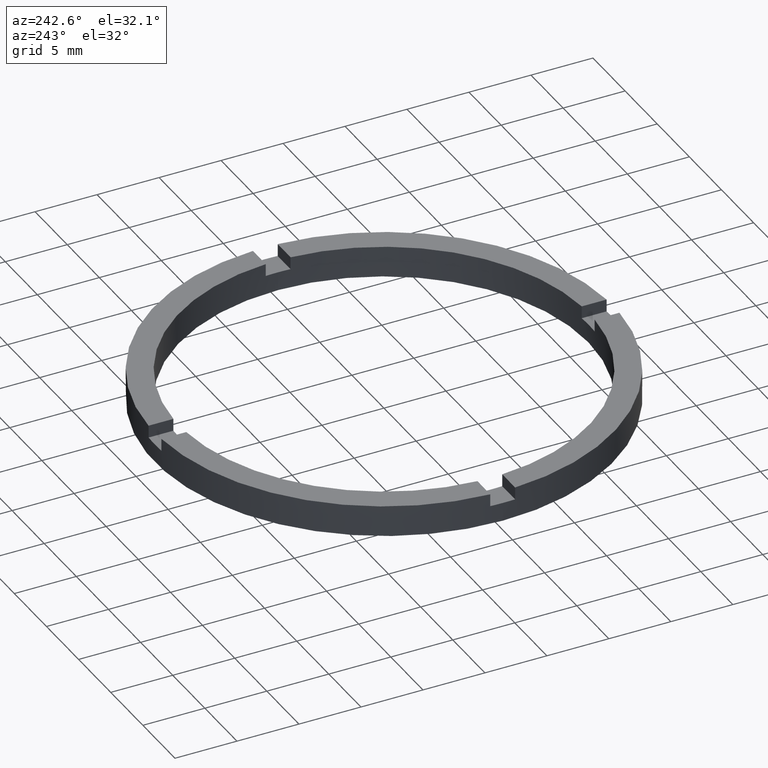
[diagram: clean part render]
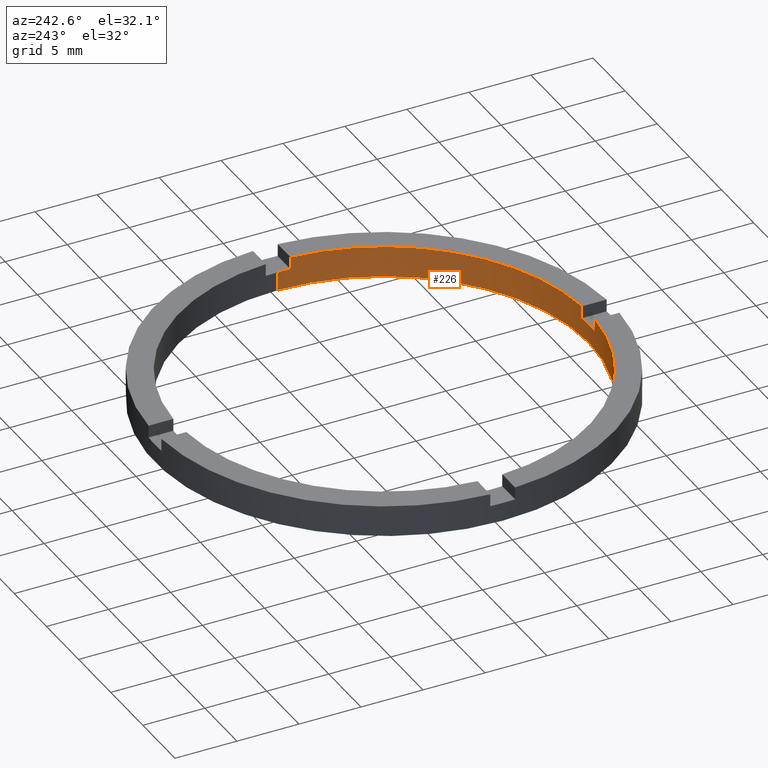
[diagram: same view with one face highlighted and labeled with its STEP entity id]
A machine part, auxiliary view. The second image highlights one B-rep face of the part: STEP entity #226.
In plain terms, the highlighted cylindrical surface (partial cylindrical patch) has radius 16.5 mm, axis along (-0, -0, -1).
Its self-contained STEP definition (entity closure, byte-faithful):
#16 = AXIS2_PLACEMENT_3D ( 'NONE', #498, #324, #439 ) ;
#30 = DIRECTION ( 'NONE',  ( -0.000000000000000000, -0.000000000000000000, -1.000000000000000000 ) ) ;
#37 = DIRECTION ( 'NONE',  ( -0.000000000000000000, 0.000000000000000000, 1.000000000000000000 ) ) ;
#46 = CARTESIAN_POINT ( 'NONE',  ( 0.000000000000000000, 0.000000000000000000, 1.500000000000000000 ) ) ;
#52 = CARTESIAN_POINT ( 'NONE',  ( 0.000000000000000000, 0.000000000000000000, 2.500000000000000000 ) ) ;
#55 = ORIENTED_EDGE ( 'NONE', *, *, #251, .F. ) ;
#63 = ORIENTED_EDGE ( 'NONE', *, *, #540, .T. ) ;
#91 = VERTEX_POINT ( 'NONE', #503 ) ;
#93 = AXIS2_PLACEMENT_3D ( 'NONE', #718, #556, #778 ) ;
#96 = DIRECTION ( 'NONE',  ( 0.000000000000000000, 0.000000000000000000, 1.000000000000000000 ) ) ;
#103 = DIRECTION ( 'NONE',  ( 1.000000000000000000, 0.000000000000000000, 0.000000000000000000 ) ) ;
#126 = VECTOR ( 'NONE', #30, 1000.000000000000000 ) ;
#127 = LINE ( 'NONE', #550, #126 ) ;
#133 = VERTEX_POINT ( 'NONE', #281 ) ;
#134 = EDGE_CURVE ( 'NONE', #183, #509, #198, .T. ) ;
#139 = LINE ( 'NONE', #145, #408 ) ;
#145 = CARTESIAN_POINT ( 'NONE',  ( -1.000000000000161204, -16.46966909200059348, 2.500000000000000000 ) ) ;
#154 = CIRCLE ( 'NONE', #93, 16.50000000000000000 ) ;
#158 = CIRCLE ( 'NONE', #191, 16.50000000000000000 ) ;
#162 = ORIENTED_EDGE ( 'NONE', *, *, #589, .T. ) ;
#179 = ORIENTED_EDGE ( 'NONE', *, *, #725, .T. ) ;
#183 = VERTEX_POINT ( 'NONE', #188 ) ;
#188 = CARTESIAN_POINT ( 'NONE',  ( -1.000000000000161204, -16.46966909200059348, 1.500000000000000000 ) ) ;
#191 = AXIS2_PLACEMENT_3D ( 'NONE', #337, #542, #328 ) ;
#192 = DIRECTION ( 'NONE',  ( 0.000000000000000000, 0.000000000000000000, 1.000000000000000000 ) ) ;
#198 = CIRCLE ( 'NONE', #577, 16.50000000000000000 ) ;
#203 = FACE_OUTER_BOUND ( 'NONE', #346, .T. ) ;
#207 = CIRCLE ( 'NONE', #630, 16.50000000000000000 ) ;
#209 = CARTESIAN_POINT ( 'NONE',  ( 16.46966909200059703, -1.000000000000157208, 1.500000000000000000 ) ) ;
#210 = EDGE_CURVE ( 'NONE', #91, #689, #207, .T. ) ;
#212 = EDGE_CURVE ( 'NONE', #603, #644, #734, .T. ) ;
#225 = DIRECTION ( 'NONE',  ( 0.000000000000000000, 0.000000000000000000, 1.000000000000000000 ) ) ;
#226 = ADVANCED_FACE ( 'NONE', ( #203 ), #377, .F. ) ;
#238 = CARTESIAN_POINT ( 'NONE',  ( 0.000000000000000000, 0.000000000000000000, 1.500000000000000000 ) ) ;
#239 = CARTESIAN_POINT ( 'NONE',  ( 0.000000000000000000, 0.000000000000000000, 1.500000000000000000 ) ) ;
#242 = DIRECTION ( 'NONE',  ( 1.000000000000000000, 0.000000000000000000, 0.000000000000000000 ) ) ;
#246 = AXIS2_PLACEMENT_3D ( 'NONE', #239, #312, #407 ) ;
#251 = EDGE_CURVE ( 'NONE', #133, #509, #657, .T. ) ;
#260 = CARTESIAN_POINT ( 'NONE',  ( 16.50000000000000000, 2.020667218593133100E-15, 2.500000000000000000 ) ) ;
#261 = CARTESIAN_POINT ( 'NONE',  ( 16.50000000000000000, 2.020667218593133100E-15, 0.000000000000000000 ) ) ;
#265 = DIRECTION ( 'NONE',  ( 0.000000000000000000, 0.000000000000000000, 1.000000000000000000 ) ) ;
#272 = DIRECTION ( 'NONE',  ( -0.000000000000000000, -0.000000000000000000, -1.000000000000000000 ) ) ;
#278 = CARTESIAN_POINT ( 'NONE',  ( 16.46966909200059703, -1.000000000000157208, 2.500000000000000000 ) ) ;
#281 = CARTESIAN_POINT ( 'NONE',  ( 0.9999999999998389066, -16.46966909200061480, 2.500000000000000000 ) ) ;
#312 = DIRECTION ( 'NONE',  ( 0.000000000000000000, 0.000000000000000000, 1.000000000000000000 ) ) ;
#316 = VERTEX_POINT ( 'NONE', #261 ) ;
#324 = DIRECTION ( 'NONE',  ( -0.000000000000000000, -0.000000000000000000, -1.000000000000000000 ) ) ;
#328 = DIRECTION ( 'NONE',  ( 1.000000000000000000, 0.000000000000000000, 0.000000000000000000 ) ) ;
#331 = EDGE_CURVE ( 'NONE', #91, #421, #127, .T. ) ;
#337 = CARTESIAN_POINT ( 'NONE',  ( 0.000000000000000000, 0.000000000000000000, 2.500000000000000000 ) ) ;
#343 = EDGE_CURVE ( 'NONE', #421, #316, #154, .T. ) ;
#346 = EDGE_LOOP ( 'NONE', ( #179, #63, #597, #619, #636, #771, #162, #391, #414, #55, #601, #613 ) ) ;
#349 = CARTESIAN_POINT ( 'NONE',  ( 16.46966909200059703, -1.000000000000157208, 2.500000000000000000 ) ) ;
#377 = CYLINDRICAL_SURFACE ( 'NONE', #16, 16.50000000000000000 ) ;
#382 = VECTOR ( 'NONE', #783, 1000.000000000000000 ) ;
#385 = VECTOR ( 'NONE', #764, 1000.000000000000000 ) ;
#391 = ORIENTED_EDGE ( 'NONE', *, *, #570, .F. ) ;
#407 = DIRECTION ( 'NONE',  ( 1.000000000000000000, 0.000000000000000000, 0.000000000000000000 ) ) ;
#408 = VECTOR ( 'NONE', #225, 1000.000000000000000 ) ;
#409 = DIRECTION ( 'NONE',  ( 1.000000000000000000, 0.000000000000000000, 0.000000000000000000 ) ) ;
#414 = ORIENTED_EDGE ( 'NONE', *, *, #134, .T. ) ;
#415 = CIRCLE ( 'NONE', #763, 16.50000000000000000 ) ;
#421 = VERTEX_POINT ( 'NONE', #512 ) ;
#433 = CIRCLE ( 'NONE', #246, 16.50000000000000000 ) ;
#439 = DIRECTION ( 'NONE',  ( -1.000000000000000000, 0.000000000000000000, 0.000000000000000000 ) ) ;
#468 = VECTOR ( 'NONE', #192, 1000.000000000000000 ) ;
#474 = CARTESIAN_POINT ( 'NONE',  ( 0.9999999999998389066, -16.46966909200061480, 1.500000000000000000 ) ) ;
#498 = CARTESIAN_POINT ( 'NONE',  ( 0.000000000000000000, 0.000000000000000000, 2.500000000000000000 ) ) ;
#499 = CARTESIAN_POINT ( 'NONE',  ( -16.46966909200060414, -1.000000000000024869, 1.500000000000000000 ) ) ;
#503 = CARTESIAN_POINT ( 'NONE',  ( -16.50000000000000000, 0.000000000000000000, 1.500000000000000000 ) ) ;
#509 = VERTEX_POINT ( 'NONE', #474 ) ;
#512 = CARTESIAN_POINT ( 'NONE',  ( -16.50000000000000000, 0.000000000000000000, 0.000000000000000000 ) ) ;
#536 = EDGE_CURVE ( 'NONE', #133, #644, #415, .T. ) ;
#538 = CARTESIAN_POINT ( 'NONE',  ( 0.9999999999998389066, -16.46966909200061480, 2.500000000000000000 ) ) ;
#540 = EDGE_CURVE ( 'NONE', #673, #316, #680, .T. ) ;
#542 = DIRECTION ( 'NONE',  ( 0.000000000000000000, 0.000000000000000000, 1.000000000000000000 ) ) ;
#550 = CARTESIAN_POINT ( 'NONE',  ( -16.50000000000000000, 0.000000000000000000, 2.500000000000000000 ) ) ;
#556 = DIRECTION ( 'NONE',  ( 0.000000000000000000, 0.000000000000000000, 1.000000000000000000 ) ) ;
#570 = EDGE_CURVE ( 'NONE', #183, #666, #139, .T. ) ;
#576 = CARTESIAN_POINT ( 'NONE',  ( -16.46966909200060414, -1.000000000000024869, 2.500000000000000000 ) ) ;
#577 = AXIS2_PLACEMENT_3D ( 'NONE', #46, #37, #242 ) ;
#589 = EDGE_CURVE ( 'NONE', #594, #666, #158, .T. ) ;
#594 = VERTEX_POINT ( 'NONE', #576 ) ;
#597 = ORIENTED_EDGE ( 'NONE', *, *, #343, .F. ) ;
#601 = ORIENTED_EDGE ( 'NONE', *, *, #536, .T. ) ;
#603 = VERTEX_POINT ( 'NONE', #209 ) ;
#613 = ORIENTED_EDGE ( 'NONE', *, *, #212, .F. ) ;
#619 = ORIENTED_EDGE ( 'NONE', *, *, #331, .F. ) ;
#630 = AXIS2_PLACEMENT_3D ( 'NONE', #238, #96, #103 ) ;
#636 = ORIENTED_EDGE ( 'NONE', *, *, #210, .T. ) ;
#644 = VERTEX_POINT ( 'NONE', #349 ) ;
#657 = LINE ( 'NONE', #538, #385 ) ;
#666 = VERTEX_POINT ( 'NONE', #672 ) ;
#672 = CARTESIAN_POINT ( 'NONE',  ( -1.000000000000161204, -16.46966909200059348, 2.500000000000000000 ) ) ;
#673 = VERTEX_POINT ( 'NONE', #757 ) ;
#680 = LINE ( 'NONE', #260, #382 ) ;
#689 = VERTEX_POINT ( 'NONE', #499 ) ;
#708 = VECTOR ( 'NONE', #272, 1000.000000000000000 ) ;
#718 = CARTESIAN_POINT ( 'NONE',  ( 0.000000000000000000, 0.000000000000000000, 0.000000000000000000 ) ) ;
#724 = LINE ( 'NONE', #779, #708 ) ;
#725 = EDGE_CURVE ( 'NONE', #603, #673, #433, .T. ) ;
#734 = LINE ( 'NONE', #278, #468 ) ;
#757 = CARTESIAN_POINT ( 'NONE',  ( 16.50000000000000000, 2.020667218593133100E-15, 1.500000000000000000 ) ) ;
#758 = EDGE_CURVE ( 'NONE', #594, #689, #724, .T. ) ;
#763 = AXIS2_PLACEMENT_3D ( 'NONE', #52, #265, #409 ) ;
#764 = DIRECTION ( 'NONE',  ( -0.000000000000000000, -0.000000000000000000, -1.000000000000000000 ) ) ;
#771 = ORIENTED_EDGE ( 'NONE', *, *, #758, .F. ) ;
#778 = DIRECTION ( 'NONE',  ( 1.000000000000000000, 0.000000000000000000, 0.000000000000000000 ) ) ;
#779 = CARTESIAN_POINT ( 'NONE',  ( -16.46966909200060414, -1.000000000000024869, 2.500000000000000000 ) ) ;
#783 = DIRECTION ( 'NONE',  ( -0.000000000000000000, -0.000000000000000000, -1.000000000000000000 ) ) ;